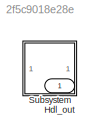
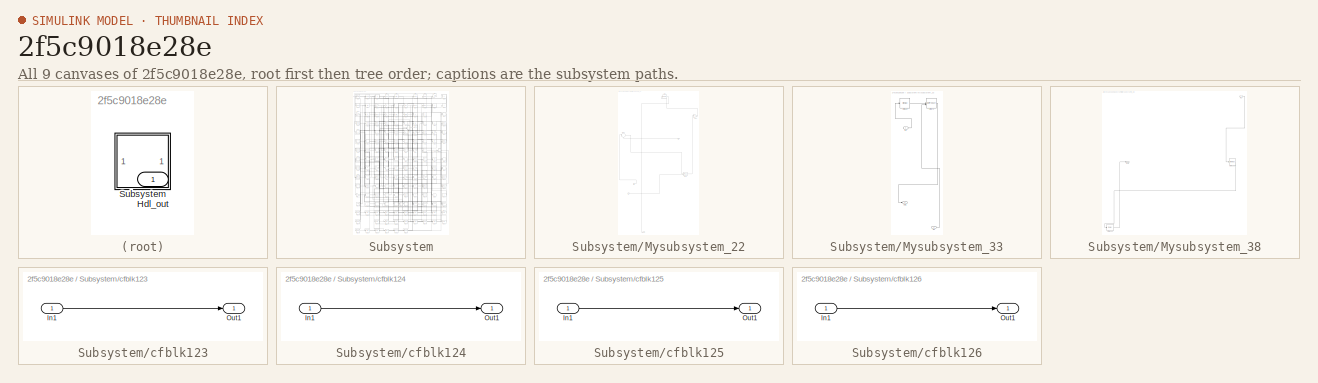
[diagram: thumbnail index - all 9 canvases of the model, root first then tree order]
MODEL slx_2f5c9018e28e
KIND model
CONFIG AbsTol = auto
CONFIG EnableMultiTasking = off
CONFIG FixedStep = auto
CONFIG MaxStep = auto
CONFIG MinStep = auto
CONFIG RelTol = 1e-3
CONFIG SampleTimeConstraint = Unconstrained
CONFIG SolverName = VariableStepAuto
CONFIG StartTime = 0.0
CONFIG StopTime = 10.0
BLOCK [Outport] Hdl_out
  OutDataTypeStr = uint8
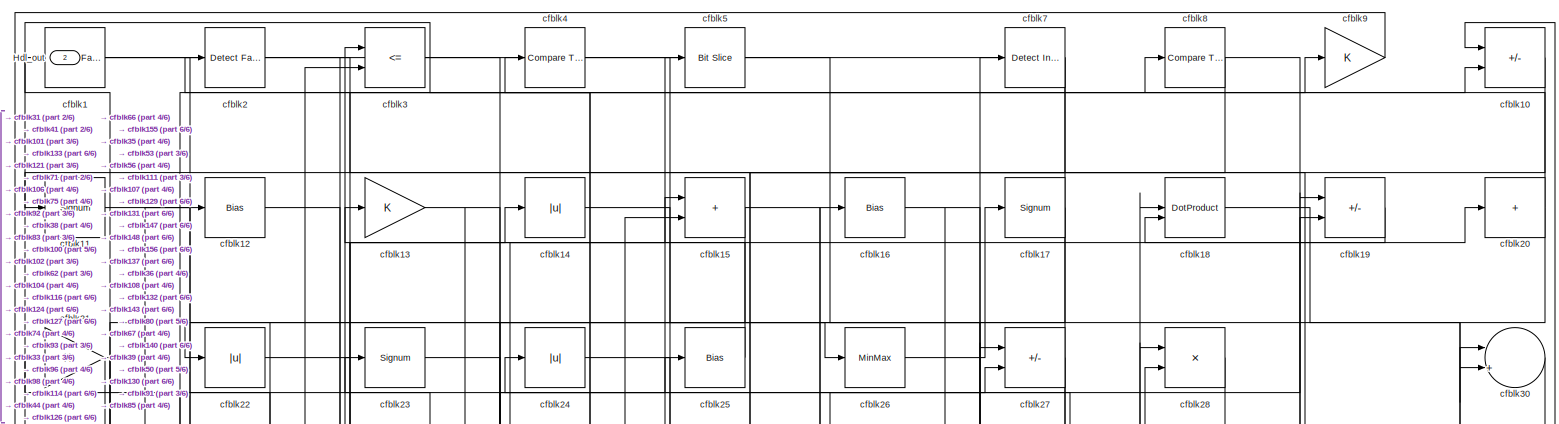
[diagram: Subsystem - part 1/6, full width, top band]
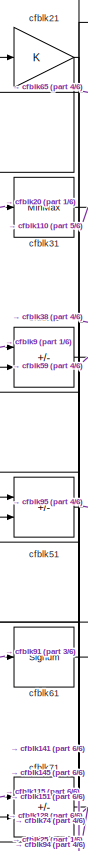
[diagram: Subsystem - part 2/6, top left region]
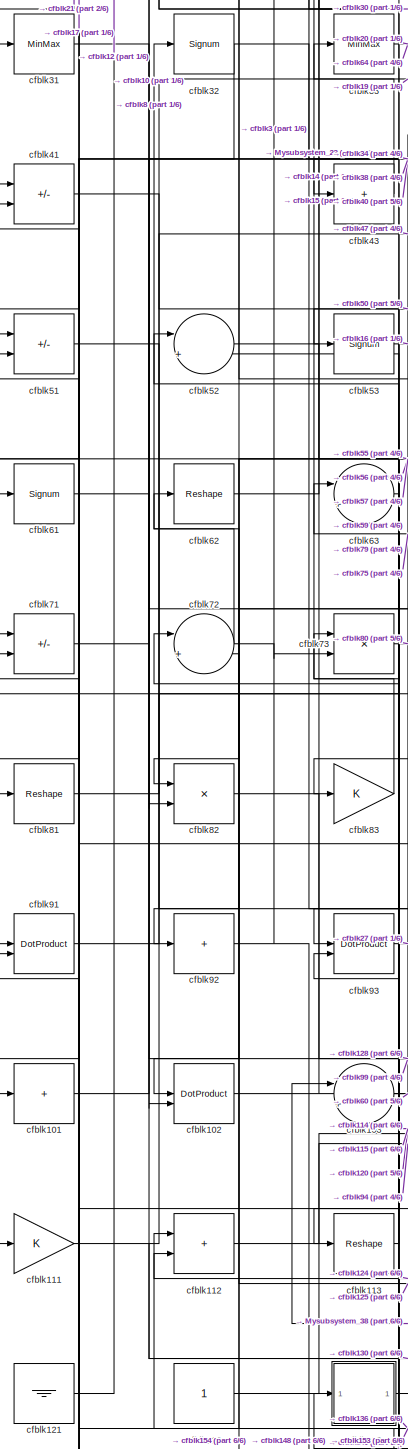
[diagram: Subsystem - part 3/6, middle left region]
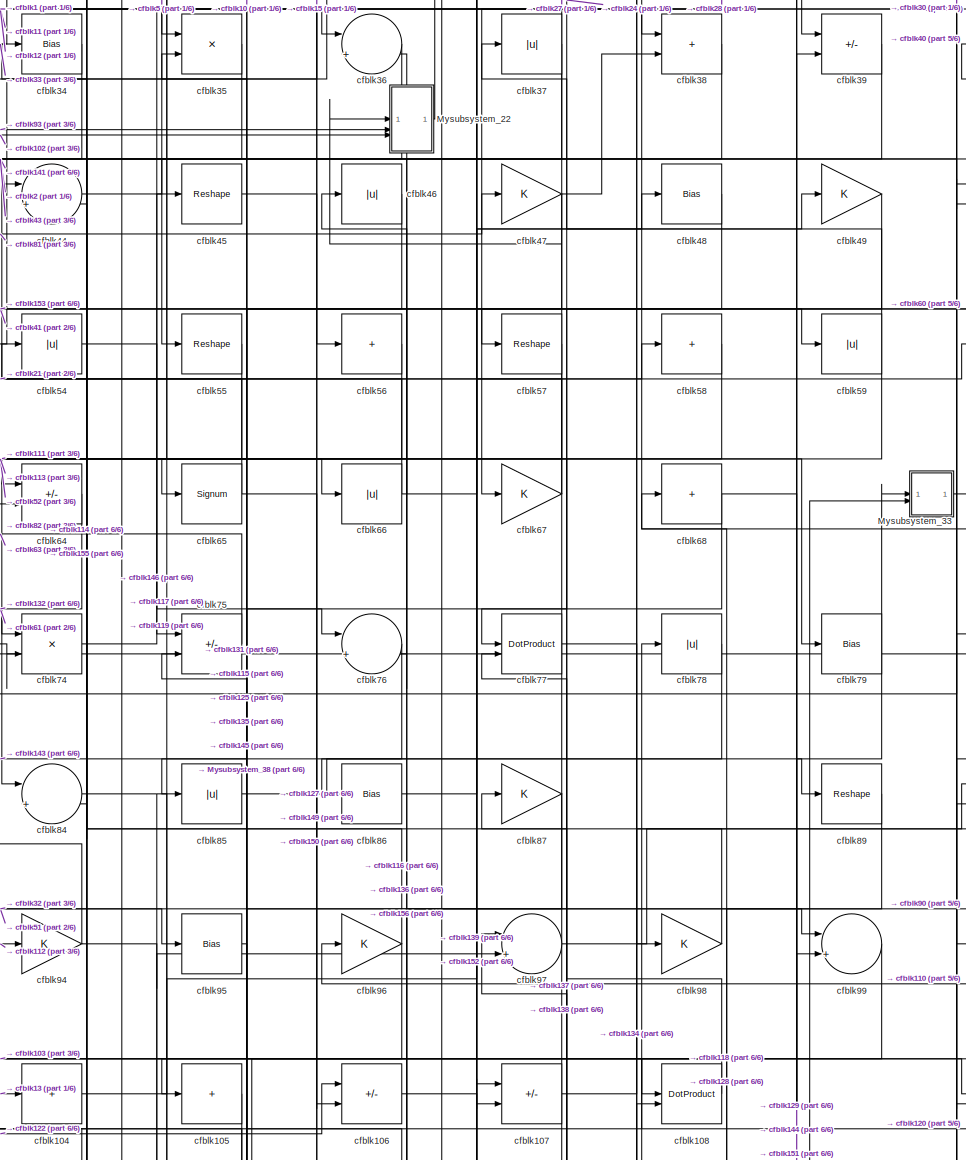
[diagram: Subsystem - part 4/6, central region]
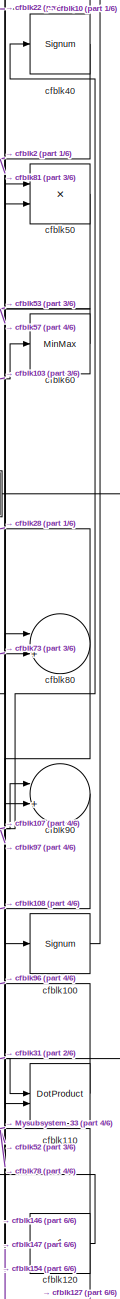
[diagram: Subsystem - part 5/6, middle right region]
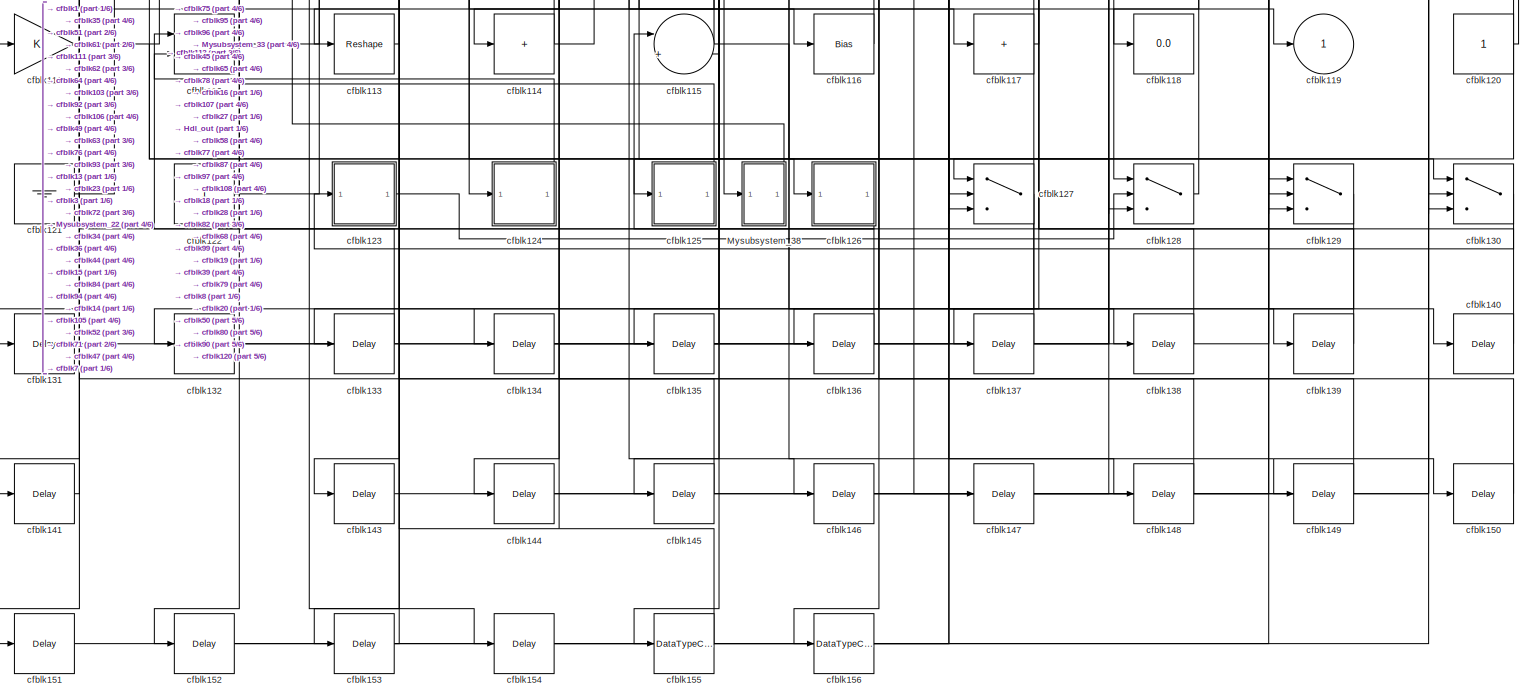
[diagram: Subsystem - part 6/6, full width, bottom band]
BLOCK [SubSystem] Subsystem
BLOCK [Outport] Subsystem/Hdl_out
  OutDataTypeStr = uint8
  Port = 2
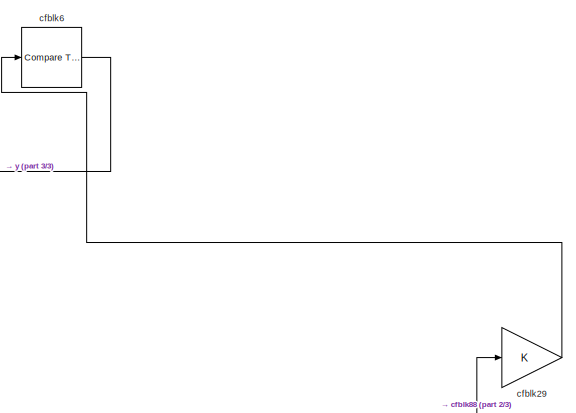
[diagram: Subsystem/Mysubsystem_22 - part 1/3, top right region]
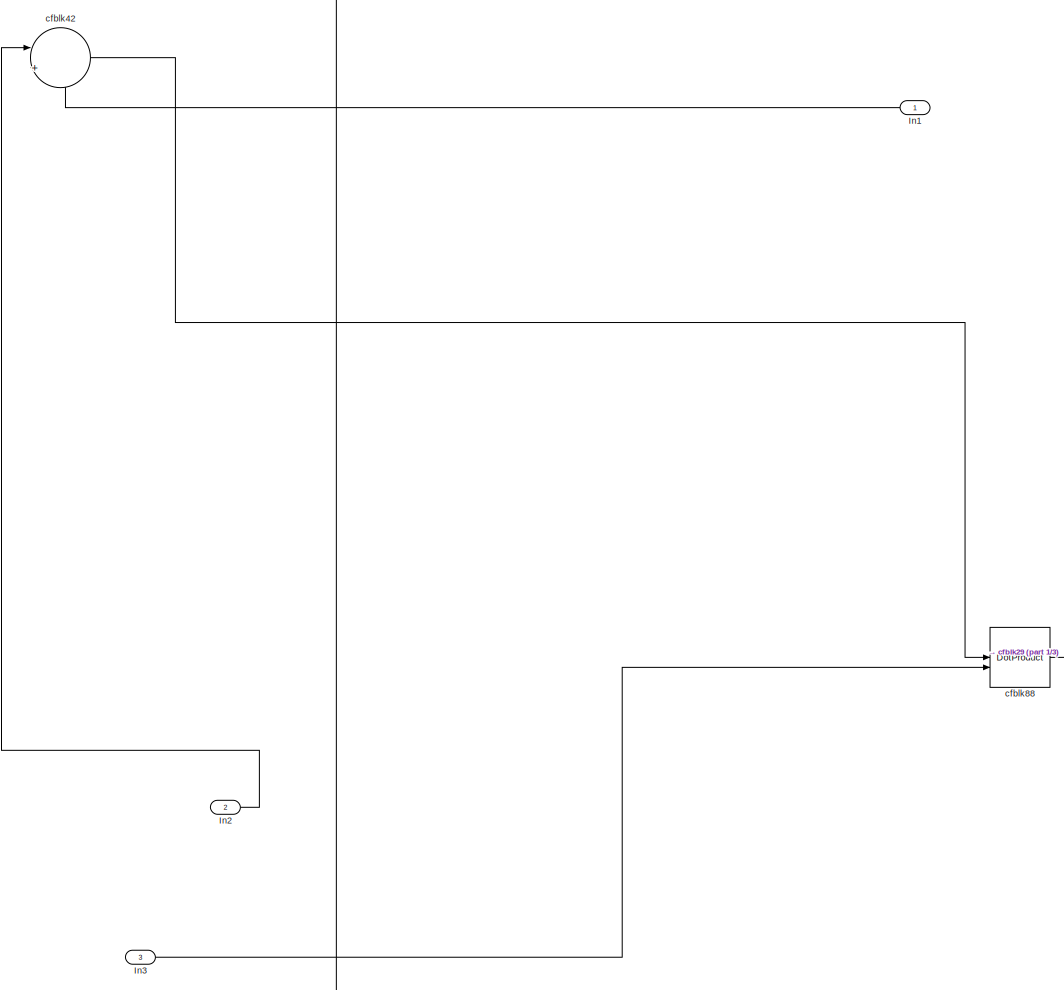
[diagram: Subsystem/Mysubsystem_22 - part 2/3, full width, middle band]
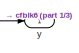
[diagram: Subsystem/Mysubsystem_22 - part 3/3, bottom left region]
BLOCK [SubSystem] Subsystem/Mysubsystem_22
  RTWFcnName = Mysubsystem_22
  RTWFcnNameOpts = User specified
  RTWFileNameOpts = Use function name
  RTWSystemCode = Reusable function
  TreatAsAtomicUnit = on
BLOCK [Inport] Subsystem/Mysubsystem_22/In1
BLOCK [Inport] Subsystem/Mysubsystem_22/In2
  Port = 2
BLOCK [Inport] Subsystem/Mysubsystem_22/In3
  Port = 3
BLOCK [Gain] Subsystem/Mysubsystem_22/cfblk29
BLOCK [Sum] Subsystem/Mysubsystem_22/cfblk42
  Inputs = |++
BLOCK [Reference] Subsystem/Mysubsystem_22/cfblk6  REF=hdlsllib/Logic and Bit
Operations/Compare
To Zero
  SourceBlock = hdlsllib/Logic and Bit\nOperations/Compare\nTo Zero
  SourceType = Compare To Zero
BLOCK [DotProduct] Subsystem/Mysubsystem_22/cfblk88
  OutDataTypeStr = Inherit: Inherit via internal rule
BLOCK [Outport] Subsystem/Mysubsystem_22/y
BLOCK [SubSystem] Subsystem/Mysubsystem_33
  RTWFcnName = Mysubsystem_33
  RTWFcnNameOpts = User specified
  RTWFileNameOpts = Use function name
  RTWSystemCode = Reusable function
  TreatAsAtomicUnit = on
BLOCK [Inport] Subsystem/Mysubsystem_33/In1
BLOCK [Inport] Subsystem/Mysubsystem_33/In2
  Port = 2
BLOCK [Outport] Subsystem/Mysubsystem_33/Out1
BLOCK [MinMax] Subsystem/Mysubsystem_33/cfblk69
BLOCK [DotProduct] Subsystem/Mysubsystem_33/cfblk70
  OutDataTypeStr = Inherit: Inherit via internal rule
BLOCK [SubSystem] Subsystem/Mysubsystem_38
  RTWFcnName = Mysubsystem_38
  RTWFcnNameOpts = User specified
  RTWFileNameOpts = Use function name
  RTWSystemCode = Reusable function
  TreatAsAtomicUnit = on
BLOCK [Inport] Subsystem/Mysubsystem_38/In1
BLOCK [Outport] Subsystem/Mysubsystem_38/Out1
BLOCK [MinMax] Subsystem/Mysubsystem_38/cfblk109
BLOCK [Delay] Subsystem/Mysubsystem_38/cfblk142
  InputPortMap = u0
  SampleTime = 1
BLOCK [Reference] Subsystem/cfblk1  REF=hdlsllib/Logic and Bit
Operations/Detect Fall
Negative
  SourceBlock = hdlsllib/Logic and Bit\nOperations/Detect Fall\nNegative
  SourceType = Detect Fall Negative
BLOCK [Sum] Subsystem/cfblk10
  IconShape = rectangular
  Inputs = +-
  OutDataTypeStr = uint8
BLOCK [Signum] Subsystem/cfblk100
BLOCK [Sum] Subsystem/cfblk101
  IconShape = rectangular
  Inputs = +
  OutDataTypeStr = uint8
BLOCK [DotProduct] Subsystem/cfblk102
  OutDataTypeStr = uint8
BLOCK [Sum] Subsystem/cfblk103
  Inputs = |++
  OutDataTypeStr = uint8
BLOCK [Sum] Subsystem/cfblk104
  IconShape = rectangular
  Inputs = +
  OutDataTypeStr = uint8
BLOCK [Sum] Subsystem/cfblk105
  IconShape = rectangular
  Inputs = +
  OutDataTypeStr = uint8
BLOCK [Sum] Subsystem/cfblk106
  IconShape = rectangular
  Inputs = +-
  OutDataTypeStr = uint8
BLOCK [Sum] Subsystem/cfblk107
  IconShape = rectangular
  Inputs = +-
  OutDataTypeStr = uint8
BLOCK [DotProduct] Subsystem/cfblk108
  OutDataTypeStr = uint8
BLOCK [Signum] Subsystem/cfblk11
BLOCK [DotProduct] Subsystem/cfblk110
  OutDataTypeStr = uint8
BLOCK [Gain] Subsystem/cfblk111
  OutDataTypeStr = uint8
BLOCK [Sum] Subsystem/cfblk112
  IconShape = rectangular
  OutDataTypeStr = uint8
BLOCK [Reshape] Subsystem/cfblk113
BLOCK [Sum] Subsystem/cfblk114
  IconShape = rectangular
  Inputs = +
  OutDataTypeStr = uint8
BLOCK [Sum] Subsystem/cfblk115
  Inputs = |++
  OutDataTypeStr = uint8
BLOCK [Bias] Subsystem/cfblk116
  Bias = 0.0
  SaturateOnIntegerOverflow = off
BLOCK [Sum] Subsystem/cfblk117
  IconShape = rectangular
  Inputs = +
  OutDataTypeStr = uint8
BLOCK [Display] Subsystem/cfblk118
  Decimation = 1
BLOCK [Outport] Subsystem/cfblk119
  OutDataTypeStr = uint8
  VectorParamsAs1DForOutWhenUnconnected = off
BLOCK [Bias] Subsystem/cfblk12
  Bias = 0.0
  SaturateOnIntegerOverflow = off
BLOCK [Constant] Subsystem/cfblk120
  OutDataTypeStr = uint8
  SampleTime = -1
BLOCK [Ground] Subsystem/cfblk121
BLOCK [Constant] Subsystem/cfblk122
  OutDataTypeStr = uint8
  SampleTime = -1
BLOCK [SubSystem] Subsystem/cfblk123
  LibrarySourceBlock = hdlsllib/Ports &\nSubsystems/Subsystem
BLOCK [Inport] Subsystem/cfblk123/In1
BLOCK [Outport] Subsystem/cfblk123/Out1
BLOCK [SubSystem] Subsystem/cfblk124
  LibrarySourceBlock = hdlsllib/Ports &\nSubsystems/Subsystem
BLOCK [Inport] Subsystem/cfblk124/In1
BLOCK [Outport] Subsystem/cfblk124/Out1
BLOCK [SubSystem] Subsystem/cfblk125
  LibrarySourceBlock = hdlsllib/Ports &\nSubsystems/Subsystem
BLOCK [Inport] Subsystem/cfblk125/In1
BLOCK [Outport] Subsystem/cfblk125/Out1
BLOCK [SubSystem] Subsystem/cfblk126
  LibrarySourceBlock = hdlsllib/Ports &\nSubsystems/Subsystem
BLOCK [Inport] Subsystem/cfblk126/In1
BLOCK [Outport] Subsystem/cfblk126/Out1
BLOCK [Switch] Subsystem/cfblk127
  InputSameDT = off
  OutDataTypeStr = uint8
  SaturateOnIntegerOverflow = off
BLOCK [Switch] Subsystem/cfblk128
  InputSameDT = off
  OutDataTypeStr = uint8
  SaturateOnIntegerOverflow = off
BLOCK [Switch] Subsystem/cfblk129
  InputSameDT = off
  OutDataTypeStr = uint8
  SaturateOnIntegerOverflow = off
BLOCK [Gain] Subsystem/cfblk13
  OutDataTypeStr = uint8
BLOCK [Switch] Subsystem/cfblk130
  InputSameDT = off
  OutDataTypeStr = uint8
  SaturateOnIntegerOverflow = off
BLOCK [Delay] Subsystem/cfblk131
  InputPortMap = u0
  SampleTime = 1
BLOCK [Delay] Subsystem/cfblk132
  InputPortMap = u0
  SampleTime = 1
BLOCK [Delay] Subsystem/cfblk133
  InputPortMap = u0
  SampleTime = 1
BLOCK [Delay] Subsystem/cfblk134
  InputPortMap = u0
  SampleTime = 1
BLOCK [Delay] Subsystem/cfblk135
  InputPortMap = u0
  SampleTime = 1
BLOCK [Delay] Subsystem/cfblk136
  InputPortMap = u0
  SampleTime = 1
BLOCK [Delay] Subsystem/cfblk137
  InputPortMap = u0
  SampleTime = 1
BLOCK [Delay] Subsystem/cfblk138
  InputPortMap = u0
  SampleTime = 1
BLOCK [Delay] Subsystem/cfblk139
  InputPortMap = u0
  SampleTime = 1
BLOCK [Abs] Subsystem/cfblk14
  OutDataTypeStr = uint8
  SaturateOnIntegerOverflow = off
BLOCK [Delay] Subsystem/cfblk140
  InputPortMap = u0
  SampleTime = 1
BLOCK [Delay] Subsystem/cfblk141
  InputPortMap = u0
  SampleTime = 1
BLOCK [Delay] Subsystem/cfblk143
  InputPortMap = u0
  SampleTime = 1
BLOCK [Delay] Subsystem/cfblk144
  InputPortMap = u0
  SampleTime = 1
BLOCK [Delay] Subsystem/cfblk145
  InputPortMap = u0
  SampleTime = 1
BLOCK [Delay] Subsystem/cfblk146
  InputPortMap = u0
  SampleTime = 1
BLOCK [Delay] Subsystem/cfblk147
  InputPortMap = u0
  SampleTime = 1
BLOCK [Delay] Subsystem/cfblk148
  InputPortMap = u0
  SampleTime = 1
BLOCK [Delay] Subsystem/cfblk149
  InputPortMap = u0
  SampleTime = 1
BLOCK [Sum] Subsystem/cfblk15
  IconShape = rectangular
  OutDataTypeStr = uint8
BLOCK [Delay] Subsystem/cfblk150
  InputPortMap = u0
  SampleTime = 1
BLOCK [Delay] Subsystem/cfblk151
  InputPortMap = u0
  SampleTime = 1
BLOCK [Delay] Subsystem/cfblk152
  InputPortMap = u0
  SampleTime = 1
BLOCK [Delay] Subsystem/cfblk153
  InputPortMap = u0
  SampleTime = 1
BLOCK [Delay] Subsystem/cfblk154
  InputPortMap = u0
  SampleTime = 1
BLOCK [DataTypeConversion] Subsystem/cfblk155
  OutDataTypeStr = uint8
  RndMeth = Floor
  SaturateOnIntegerOverflow = off
BLOCK [DataTypeConversion] Subsystem/cfblk156
  OutDataTypeStr = uint8
  RndMeth = Floor
  SaturateOnIntegerOverflow = off
BLOCK [Bias] Subsystem/cfblk16
  Bias = 0.0
  SaturateOnIntegerOverflow = off
BLOCK [Signum] Subsystem/cfblk17
BLOCK [DotProduct] Subsystem/cfblk18
  OutDataTypeStr = uint8
BLOCK [Sum] Subsystem/cfblk19
  IconShape = rectangular
  Inputs = +-
  OutDataTypeStr = uint8
BLOCK [Reference] Subsystem/cfblk2  REF=hdlsllib/Logic and Bit
Operations/Detect Fall
Nonpositive
  SourceBlock = hdlsllib/Logic and Bit\nOperations/Detect Fall\nNonpositive
  SourceType = Detect Fall Nonpositive
BLOCK [Sum] Subsystem/cfblk20
  IconShape = rectangular
  Inputs = +
  OutDataTypeStr = uint8
BLOCK [Gain] Subsystem/cfblk21
  OutDataTypeStr = uint8
BLOCK [Abs] Subsystem/cfblk22
  OutDataTypeStr = uint8
  SaturateOnIntegerOverflow = off
BLOCK [Signum] Subsystem/cfblk23
BLOCK [Abs] Subsystem/cfblk24
  OutDataTypeStr = uint8
  SaturateOnIntegerOverflow = off
BLOCK [Bias] Subsystem/cfblk25
  Bias = 0.0
  SaturateOnIntegerOverflow = off
BLOCK [MinMax] Subsystem/cfblk26
  OutDataTypeStr = uint8
BLOCK [Sum] Subsystem/cfblk27
  IconShape = rectangular
  Inputs = +-
  OutDataTypeStr = uint8
BLOCK [Product] Subsystem/cfblk28
  Inputs = */
  OutDataTypeStr = uint8
  RndMeth = Zero
  SaturateOnIntegerOverflow = on
BLOCK [RelationalOperator] Subsystem/cfblk3
  InputSameDT = off
  Operator = <=
  OutDataTypeStr = boolean
BLOCK [Sum] Subsystem/cfblk30
  Inputs = |++
  OutDataTypeStr = uint8
BLOCK [MinMax] Subsystem/cfblk31
  OutDataTypeStr = uint8
BLOCK [Signum] Subsystem/cfblk32
BLOCK [MinMax] Subsystem/cfblk33
  OutDataTypeStr = uint8
BLOCK [Bias] Subsystem/cfblk34
  Bias = 0.0
  SaturateOnIntegerOverflow = off
BLOCK [Product] Subsystem/cfblk35
  Inputs = */
  OutDataTypeStr = uint8
  RndMeth = Zero
  SaturateOnIntegerOverflow = on
BLOCK [Sum] Subsystem/cfblk36
  Inputs = |++
  OutDataTypeStr = uint8
BLOCK [Abs] Subsystem/cfblk37
  OutDataTypeStr = uint8
  SaturateOnIntegerOverflow = off
BLOCK [Sum] Subsystem/cfblk38
  IconShape = rectangular
  OutDataTypeStr = uint8
BLOCK [Sum] Subsystem/cfblk39
  IconShape = rectangular
  Inputs = +-
  OutDataTypeStr = uint8
BLOCK [Reference] Subsystem/cfblk4  REF=hdlsllib/Logic and Bit
Operations/Compare
To Zero
  SourceBlock = hdlsllib/Logic and Bit\nOperations/Compare\nTo Zero
  SourceType = Compare To Zero
BLOCK [Signum] Subsystem/cfblk40
BLOCK [Sum] Subsystem/cfblk41
  IconShape = rectangular
  Inputs = +-
  OutDataTypeStr = uint8
BLOCK [Sum] Subsystem/cfblk43
  IconShape = rectangular
  Inputs = +
  OutDataTypeStr = uint8
BLOCK [Sum] Subsystem/cfblk44
  Inputs = |++
  OutDataTypeStr = uint8
BLOCK [Reshape] Subsystem/cfblk45
BLOCK [Abs] Subsystem/cfblk46
  OutDataTypeStr = uint8
  SaturateOnIntegerOverflow = off
BLOCK [Gain] Subsystem/cfblk47
  OutDataTypeStr = uint8
BLOCK [Bias] Subsystem/cfblk48
  Bias = 0.0
  SaturateOnIntegerOverflow = off
BLOCK [Gain] Subsystem/cfblk49
  OutDataTypeStr = uint8
BLOCK [Reference] Subsystem/cfblk5  REF=hdlsllib/Logic and Bit
Operations/Bit Slice
  SourceBlock = hdlsllib/Logic and Bit\nOperations/Bit Slice
  SourceType = Bit Slice
BLOCK [Product] Subsystem/cfblk50
  Inputs = */
  OutDataTypeStr = uint8
  RndMeth = Zero
  SaturateOnIntegerOverflow = on
BLOCK [Sum] Subsystem/cfblk51
  IconShape = rectangular
  Inputs = +-
  OutDataTypeStr = uint8
BLOCK [Sum] Subsystem/cfblk52
  Inputs = |++
  OutDataTypeStr = uint8
BLOCK [Signum] Subsystem/cfblk53
BLOCK [Abs] Subsystem/cfblk54
  OutDataTypeStr = uint8
  SaturateOnIntegerOverflow = off
BLOCK [Reshape] Subsystem/cfblk55
BLOCK [Sum] Subsystem/cfblk56
  IconShape = rectangular
  Inputs = +
  OutDataTypeStr = uint8
BLOCK [Reshape] Subsystem/cfblk57
BLOCK [Sum] Subsystem/cfblk58
  IconShape = rectangular
  Inputs = +
  OutDataTypeStr = uint8
BLOCK [Abs] Subsystem/cfblk59
  OutDataTypeStr = uint8
  SaturateOnIntegerOverflow = off
BLOCK [MinMax] Subsystem/cfblk60
  OutDataTypeStr = uint8
BLOCK [Signum] Subsystem/cfblk61
BLOCK [Reshape] Subsystem/cfblk62
BLOCK [Sum] Subsystem/cfblk63
  Inputs = |++
  OutDataTypeStr = uint8
BLOCK [Sum] Subsystem/cfblk64
  IconShape = rectangular
  Inputs = +-
  OutDataTypeStr = uint8
BLOCK [Signum] Subsystem/cfblk65
BLOCK [Abs] Subsystem/cfblk66
  OutDataTypeStr = uint8
  SaturateOnIntegerOverflow = off
BLOCK [Gain] Subsystem/cfblk67
  OutDataTypeStr = uint8
BLOCK [Sum] Subsystem/cfblk68
  IconShape = rectangular
  Inputs = +
  OutDataTypeStr = uint8
BLOCK [Reference] Subsystem/cfblk7  REF=simulink/Logic and Bit
Operations/Detect
Increase
  LibrarySourceBlock = hdlsllib/Logic and Bit\nOperations/Detect\nIncrease
  SourceBlock = simulink/Logic and Bit\nOperations/Detect\nIncrease
  SourceType = Detect Increase
BLOCK [Sum] Subsystem/cfblk71
  IconShape = rectangular
  Inputs = +-
  OutDataTypeStr = uint8
BLOCK [Sum] Subsystem/cfblk72
  Inputs = |++
  OutDataTypeStr = uint8
BLOCK [Product] Subsystem/cfblk73
  Inputs = */
  OutDataTypeStr = uint8
  RndMeth = Zero
  SaturateOnIntegerOverflow = on
BLOCK [Product] Subsystem/cfblk74
  Inputs = */
  OutDataTypeStr = uint8
  RndMeth = Zero
  SaturateOnIntegerOverflow = on
BLOCK [Sum] Subsystem/cfblk75
  IconShape = rectangular
  Inputs = +-
  OutDataTypeStr = uint8
BLOCK [Sum] Subsystem/cfblk76
  Inputs = |++
  OutDataTypeStr = uint8
BLOCK [DotProduct] Subsystem/cfblk77
  OutDataTypeStr = uint8
BLOCK [Abs] Subsystem/cfblk78
  OutDataTypeStr = uint8
  SaturateOnIntegerOverflow = off
BLOCK [Bias] Subsystem/cfblk79
  Bias = 0.0
  SaturateOnIntegerOverflow = off
BLOCK [Reference] Subsystem/cfblk8  REF=hdlsllib/Logic and Bit
Operations/Compare
To Zero
  SourceBlock = hdlsllib/Logic and Bit\nOperations/Compare\nTo Zero
  SourceType = Compare To Zero
BLOCK [Sum] Subsystem/cfblk80
  Inputs = |++
  OutDataTypeStr = uint8
BLOCK [Reshape] Subsystem/cfblk81
BLOCK [Product] Subsystem/cfblk82
  Inputs = */
  OutDataTypeStr = uint8
  RndMeth = Zero
  SaturateOnIntegerOverflow = on
BLOCK [Gain] Subsystem/cfblk83
  OutDataTypeStr = uint8
BLOCK [Sum] Subsystem/cfblk84
  Inputs = |++
  OutDataTypeStr = uint8
BLOCK [Abs] Subsystem/cfblk85
  OutDataTypeStr = uint8
  SaturateOnIntegerOverflow = off
BLOCK [Bias] Subsystem/cfblk86
  Bias = 0.0
  SaturateOnIntegerOverflow = off
BLOCK [Gain] Subsystem/cfblk87
  OutDataTypeStr = uint8
BLOCK [Reshape] Subsystem/cfblk89
BLOCK [Gain] Subsystem/cfblk9
  OutDataTypeStr = uint8
BLOCK [Sum] Subsystem/cfblk90
  Inputs = |++
  OutDataTypeStr = uint8
BLOCK [DotProduct] Subsystem/cfblk91
  OutDataTypeStr = uint8
BLOCK [Sum] Subsystem/cfblk92
  IconShape = rectangular
  Inputs = +
  OutDataTypeStr = uint8
BLOCK [DotProduct] Subsystem/cfblk93
  OutDataTypeStr = uint8
BLOCK [Gain] Subsystem/cfblk94
  OutDataTypeStr = uint8
BLOCK [Bias] Subsystem/cfblk95
  Bias = 0.0
  SaturateOnIntegerOverflow = off
BLOCK [Gain] Subsystem/cfblk96
  OutDataTypeStr = uint8
BLOCK [Sum] Subsystem/cfblk97
  Inputs = |++
  OutDataTypeStr = uint8
BLOCK [Gain] Subsystem/cfblk98
  OutDataTypeStr = uint8
BLOCK [Sum] Subsystem/cfblk99
  Inputs = |++
  OutDataTypeStr = uint8
LINE Subsystem/Mysubsystem_22/In1:1 -> Subsystem/Mysubsystem_22/cfblk42:2
LINE Subsystem/Mysubsystem_22/In2:1 -> Subsystem/Mysubsystem_22/cfblk42:1
LINE Subsystem/Mysubsystem_22/In3:1 -> Subsystem/Mysubsystem_22/cfblk88:2
LINE Subsystem/Mysubsystem_22/cfblk29:1 -> Subsystem/Mysubsystem_22/cfblk6:1
LINE Subsystem/Mysubsystem_22/cfblk42:1 -> Subsystem/Mysubsystem_22/cfblk88:1
LINE Subsystem/Mysubsystem_22/cfblk6:1 -> Subsystem/Mysubsystem_22/y:1
LINE Subsystem/Mysubsystem_22/cfblk88:1 -> Subsystem/Mysubsystem_22/cfblk29:1
LINE Subsystem/Mysubsystem_22:1 -> Subsystem/cfblk144:1
LINE Subsystem/Mysubsystem_33/In1:1 -> Subsystem/Mysubsystem_33/cfblk69:1
LINE Subsystem/Mysubsystem_33/In2:1 -> Subsystem/Mysubsystem_33/cfblk70:2
LINE Subsystem/Mysubsystem_33/cfblk69:1 -> Subsystem/Mysubsystem_33/cfblk70:1
LINE Subsystem/Mysubsystem_33/cfblk70:1 -> Subsystem/Mysubsystem_33/Out1:1
LINE Subsystem/Mysubsystem_33:1 -> Subsystem/Mysubsystem_38:1
LINE Subsystem/Mysubsystem_38/In1:1 -> Subsystem/Mysubsystem_38/cfblk109:1
LINE Subsystem/Mysubsystem_38/cfblk109:1 -> Subsystem/Mysubsystem_38/cfblk142:1
LINE Subsystem/Mysubsystem_38/cfblk142:1 -> Subsystem/Mysubsystem_38/Out1:1
LINE Subsystem/Mysubsystem_38:1 -> Subsystem/cfblk103:1
LINE Subsystem/cfblk100:1 -> Subsystem/cfblk10:1
NET Subsystem/cfblk101:1 -> Subsystem/cfblk10:2, Subsystem/cfblk8:1
NET Subsystem/cfblk102:1 -> Subsystem/Mysubsystem_22:3, Subsystem/cfblk14:1
LINE Subsystem/cfblk103:1 -> Subsystem/cfblk60:1
LINE Subsystem/cfblk104:1 -> Subsystem/cfblk49:1
LINE Subsystem/cfblk105:1 -> Subsystem/cfblk131:1
LINE Subsystem/cfblk106:1 -> Subsystem/cfblk139:1
LINE Subsystem/cfblk107:1 -> Subsystem/cfblk90:1
LINE Subsystem/cfblk108:1 -> Subsystem/cfblk24:1
LINE Subsystem/cfblk10:1 -> Subsystem/cfblk35:1
LINE Subsystem/cfblk110:1 -> Subsystem/cfblk96:1
NET Subsystem/cfblk111:1 -> Subsystem/cfblk130:3, Subsystem/cfblk19:1
LINE Subsystem/cfblk112:1 -> Subsystem/cfblk94:1
LINE Subsystem/cfblk113:1 -> Subsystem/cfblk73:1
NET Subsystem/cfblk114:1 -> Subsystem/cfblk15:2, Subsystem/cfblk72:1
NET Subsystem/cfblk115:1 -> Subsystem/cfblk138:1, Subsystem/cfblk52:2, Subsystem/cfblk71:1
LINE Subsystem/cfblk116:1 -> Subsystem/cfblk35:2
LINE Subsystem/cfblk117:1 -> Subsystem/cfblk87:1
LINE Subsystem/cfblk11:1 -> Subsystem/cfblk106:2
NET Subsystem/cfblk120:1 -> Subsystem/Mysubsystem_33:2, Subsystem/cfblk127:1, Subsystem/cfblk52:1, Subsystem/cfblk78:1
NET Subsystem/cfblk121:1 -> Subsystem/cfblk12:1, Subsystem/cfblk91:1
LINE Subsystem/cfblk122:1 -> Subsystem/cfblk106:1
LINE Subsystem/cfblk123/In1:1 -> Subsystem/cfblk123/Out1:1
LINE Subsystem/cfblk123:1 -> Subsystem/cfblk128:2
LINE Subsystem/cfblk124/In1:1 -> Subsystem/cfblk124/Out1:1
LINE Subsystem/cfblk124:1 -> Subsystem/cfblk112:1
LINE Subsystem/cfblk125/In1:1 -> Subsystem/cfblk125/Out1:1
LINE Subsystem/cfblk125:1 -> Subsystem/cfblk62:1
LINE Subsystem/cfblk126/In1:1 -> Subsystem/cfblk126/Out1:1
LINE Subsystem/cfblk126:1 -> Subsystem/cfblk115:1
LINE Subsystem/cfblk127:1 -> Subsystem/cfblk152:1
LINE Subsystem/cfblk128:1 -> Subsystem/cfblk68:1
NET Subsystem/cfblk129:1 -> Subsystem/cfblk133:1, Subsystem/cfblk134:1
LINE Subsystem/cfblk12:1 -> Subsystem/cfblk38:1
LINE Subsystem/cfblk130:1 -> Subsystem/cfblk123:1
LINE Subsystem/cfblk131:1 -> Subsystem/cfblk27:1
LINE Subsystem/cfblk132:1 -> Subsystem/cfblk28:1
LINE Subsystem/cfblk133:1 -> Subsystem/cfblk1:1
LINE Subsystem/cfblk134:1 -> Subsystem/cfblk108:2
LINE Subsystem/cfblk135:1 -> Subsystem/cfblk75:2
LINE Subsystem/cfblk136:1 -> Subsystem/cfblk72:2
NET Subsystem/cfblk137:1 -> Subsystem/Hdl_out:1, Subsystem/cfblk19:2
LINE Subsystem/cfblk138:1 -> Subsystem/cfblk77:2
LINE Subsystem/cfblk139:1 -> Subsystem/cfblk97:1
NET Subsystem/cfblk13:1 -> Subsystem/cfblk104:1, Subsystem/cfblk127:2
LINE Subsystem/cfblk140:1 -> Subsystem/cfblk112:2
LINE Subsystem/cfblk141:1 -> Subsystem/cfblk71:2
LINE Subsystem/cfblk143:1 -> Subsystem/cfblk18:1
LINE Subsystem/cfblk144:1 -> Subsystem/cfblk39:2
LINE Subsystem/cfblk145:1 -> Subsystem/cfblk51:2
LINE Subsystem/cfblk146:1 -> Subsystem/cfblk90:2
LINE Subsystem/cfblk147:1 -> Subsystem/cfblk50:1
LINE Subsystem/cfblk148:1 -> Subsystem/cfblk93:2
LINE Subsystem/cfblk149:1 -> Subsystem/cfblk44:2
LINE Subsystem/cfblk14:1 -> Subsystem/cfblk126:1
LINE Subsystem/cfblk150:1 -> Subsystem/cfblk36:2
LINE Subsystem/cfblk151:1 -> Subsystem/cfblk99:2
LINE Subsystem/cfblk152:1 -> Subsystem/cfblk107:1
LINE Subsystem/cfblk153:1 -> Subsystem/cfblk63:2
LINE Subsystem/cfblk154:1 -> Subsystem/cfblk80:1
NET Subsystem/cfblk155:1 -> Subsystem/cfblk23:1, Subsystem/cfblk34:1
LINE Subsystem/cfblk156:1 -> Subsystem/cfblk7:1
NET Subsystem/cfblk15:1 -> Subsystem/cfblk22:1, Subsystem/cfblk56:1, Subsystem/cfblk92:1
NET Subsystem/cfblk16:1 -> Subsystem/cfblk129:2, Subsystem/cfblk147:1, Subsystem/cfblk148:1
LINE Subsystem/cfblk17:1 -> Subsystem/cfblk101:1
LINE Subsystem/cfblk18:1 -> Subsystem/cfblk30:2
LINE Subsystem/cfblk19:1 -> Subsystem/cfblk18:2
LINE Subsystem/cfblk1:1 -> Subsystem/cfblk75:1
NET Subsystem/cfblk20:1 -> Subsystem/cfblk130:2, Subsystem/cfblk31:1, Subsystem/cfblk74:2
NET Subsystem/cfblk21:1 -> Subsystem/cfblk61:1, Subsystem/cfblk91:2
NET Subsystem/cfblk22:1 -> Subsystem/cfblk100:1, Subsystem/cfblk9:1
LINE Subsystem/cfblk23:1 -> Subsystem/cfblk116:1
LINE Subsystem/cfblk24:1 -> Subsystem/cfblk66:1
LINE Subsystem/cfblk25:1 -> Subsystem/cfblk4:1
LINE Subsystem/cfblk26:1 -> Subsystem/cfblk17:1
LINE Subsystem/cfblk27:1 -> Subsystem/cfblk36:1
LINE Subsystem/cfblk28:1 -> Subsystem/cfblk67:1
NET Subsystem/cfblk2:1 -> Subsystem/cfblk39:1, Subsystem/cfblk50:2
NET Subsystem/cfblk30:1 -> Subsystem/cfblk83:1, Subsystem/cfblk85:1
LINE Subsystem/cfblk31:1 -> Subsystem/cfblk110:1
NET Subsystem/cfblk32:1 -> Subsystem/cfblk102:2, Subsystem/cfblk99:1
NET Subsystem/cfblk33:1 -> Subsystem/cfblk20:1, Subsystem/cfblk64:2
LINE Subsystem/cfblk34:1 -> Subsystem/cfblk43:1
NET Subsystem/cfblk35:1 -> Subsystem/cfblk141:1, Subsystem/cfblk84:2
LINE Subsystem/cfblk36:1 -> Subsystem/cfblk114:1
LINE Subsystem/cfblk37:1 -> Subsystem/cfblk86:1
NET Subsystem/cfblk38:1 -> Subsystem/cfblk51:1, Subsystem/cfblk82:2
LINE Subsystem/cfblk39:1 -> Subsystem/cfblk55:1
LINE Subsystem/cfblk3:1 -> Subsystem/cfblk124:1
LINE Subsystem/cfblk40:1 -> Subsystem/cfblk81:1
LINE Subsystem/cfblk41:1 -> Subsystem/cfblk59:1
LINE Subsystem/cfblk43:1 -> Subsystem/cfblk33:1
LINE Subsystem/cfblk44:1 -> Subsystem/cfblk5:1
NET Subsystem/cfblk45:1 -> Subsystem/cfblk149:1, Subsystem/cfblk150:1
LINE Subsystem/cfblk46:1 -> Subsystem/cfblk65:1
NET Subsystem/cfblk47:1 -> Subsystem/Mysubsystem_22:1, Subsystem/cfblk115:2, Subsystem/cfblk38:2, Subsystem/cfblk76:2
LINE Subsystem/cfblk48:1 -> Subsystem/cfblk77:1
LINE Subsystem/cfblk49:1 -> Subsystem/cfblk153:1
LINE Subsystem/cfblk4:1 -> Subsystem/cfblk26:1
LINE Subsystem/cfblk50:1 -> Subsystem/cfblk53:1
LINE Subsystem/cfblk51:1 -> Subsystem/cfblk95:1
LINE Subsystem/cfblk52:1 -> Subsystem/cfblk79:1
LINE Subsystem/cfblk53:1 -> Subsystem/cfblk16:1
LINE Subsystem/cfblk54:1 -> Subsystem/cfblk76:1
LINE Subsystem/cfblk55:1 -> Subsystem/cfblk111:1
LINE Subsystem/cfblk56:1 -> Subsystem/cfblk102:1
LINE Subsystem/cfblk57:1 -> Subsystem/cfblk113:1
NET Subsystem/cfblk58:1 -> Subsystem/cfblk137:1, Subsystem/cfblk84:1
NET Subsystem/cfblk59:1 -> Subsystem/cfblk37:1, Subsystem/cfblk64:1, Subsystem/cfblk82:1
LINE Subsystem/cfblk5:1 -> Subsystem/cfblk107:2
LINE Subsystem/cfblk60:1 -> Subsystem/cfblk57:1
NET Subsystem/cfblk61:1 -> Subsystem/cfblk151:1, Subsystem/cfblk74:1
LINE Subsystem/cfblk62:1 -> Subsystem/cfblk15:1
LINE Subsystem/cfblk63:1 -> Subsystem/cfblk93:1
LINE Subsystem/cfblk64:1 -> Subsystem/cfblk132:1
NET Subsystem/cfblk65:1 -> Subsystem/cfblk127:3, Subsystem/cfblk21:1
NET Subsystem/cfblk66:1 -> Subsystem/cfblk46:1, Subsystem/cfblk48:1, Subsystem/cfblk54:1
LINE Subsystem/cfblk67:1 -> Subsystem/cfblk44:1
NET Subsystem/cfblk68:1 -> Subsystem/cfblk129:1, Subsystem/cfblk135:1
NET Subsystem/cfblk71:1 -> Subsystem/cfblk128:3, Subsystem/cfblk25:1
NET Subsystem/cfblk72:1 -> Subsystem/cfblk32:1, Subsystem/cfblk73:2
LINE Subsystem/cfblk73:1 -> Subsystem/cfblk80:2
LINE Subsystem/cfblk74:1 -> Subsystem/cfblk45:1
LINE Subsystem/cfblk75:1 -> Subsystem/cfblk63:1
LINE Subsystem/cfblk76:1 -> Subsystem/cfblk143:1
LINE Subsystem/cfblk77:1 -> Subsystem/cfblk98:1
LINE Subsystem/cfblk78:1 -> Subsystem/cfblk156:1
NET Subsystem/cfblk79:1 -> Subsystem/Mysubsystem_33:1, Subsystem/cfblk129:3
LINE Subsystem/cfblk7:1 -> Subsystem/cfblk155:1
NET Subsystem/cfblk80:1 -> Subsystem/cfblk110:2, Subsystem/cfblk28:2
LINE Subsystem/cfblk81:1 -> Subsystem/cfblk47:1
LINE Subsystem/cfblk82:1 -> Subsystem/cfblk128:1
LINE Subsystem/cfblk83:1 -> Subsystem/cfblk3:1
NET Subsystem/cfblk84:1 -> Subsystem/cfblk117:1, Subsystem/cfblk119:1
LINE Subsystem/cfblk85:1 -> Subsystem/cfblk89:1
LINE Subsystem/cfblk86:1 -> Subsystem/cfblk58:1
LINE Subsystem/cfblk87:1 -> Subsystem/cfblk136:1
LINE Subsystem/cfblk89:1 -> Subsystem/cfblk105:1
NET Subsystem/cfblk8:1 -> Subsystem/cfblk11:1, Subsystem/cfblk130:1, Subsystem/cfblk140:1
LINE Subsystem/cfblk90:1 -> Subsystem/cfblk108:1
LINE Subsystem/cfblk91:1 -> Subsystem/cfblk30:1
NET Subsystem/cfblk92:1 -> Subsystem/cfblk154:1, Subsystem/cfblk3:2
NET Subsystem/cfblk93:1 -> Subsystem/Mysubsystem_22:2, Subsystem/cfblk27:2
NET Subsystem/cfblk94:1 -> Subsystem/cfblk146:1, Subsystem/cfblk41:2, Subsystem/cfblk97:2
LINE Subsystem/cfblk95:1 -> Subsystem/cfblk145:1
NET Subsystem/cfblk96:1 -> Subsystem/cfblk125:1, Subsystem/cfblk13:1
LINE Subsystem/cfblk97:1 -> Subsystem/cfblk40:1
LINE Subsystem/cfblk98:1 -> Subsystem/cfblk2:1
NET Subsystem/cfblk99:1 -> Subsystem/cfblk103:2, Subsystem/cfblk118:1
LINE Subsystem/cfblk9:1 -> Subsystem/cfblk41:1
note: NET lines group one-source signal fan-out (src -> all destinations, sorted); 1:1 wires keep LINE
